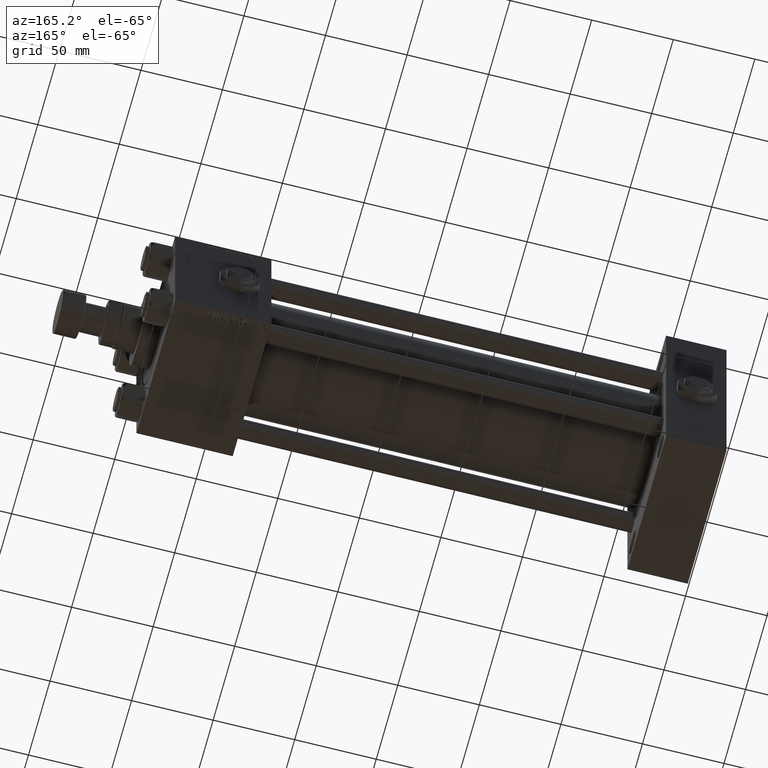
[diagram: clean part render]
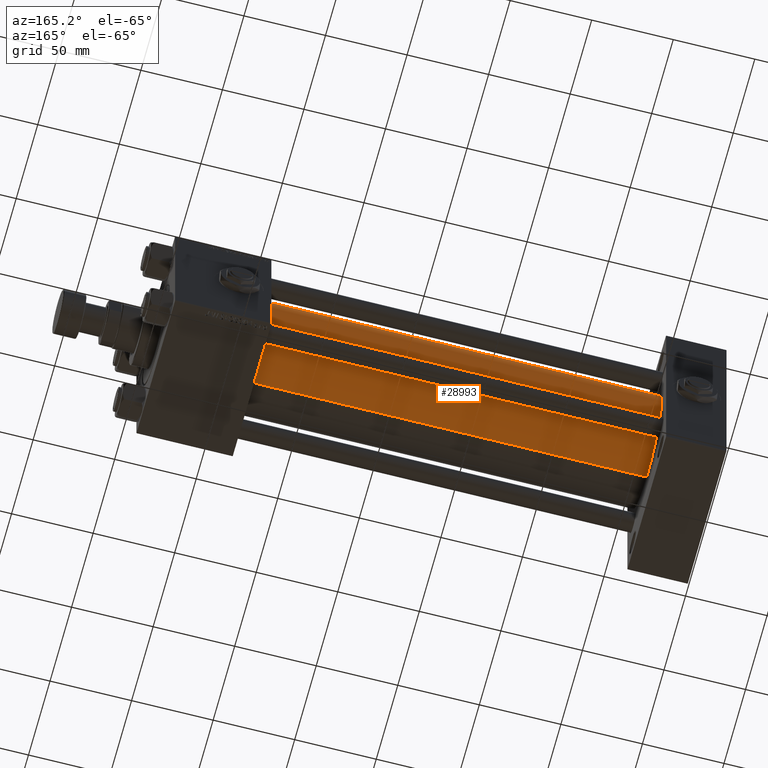
[diagram: same view with one face highlighted and labeled with its STEP entity id]
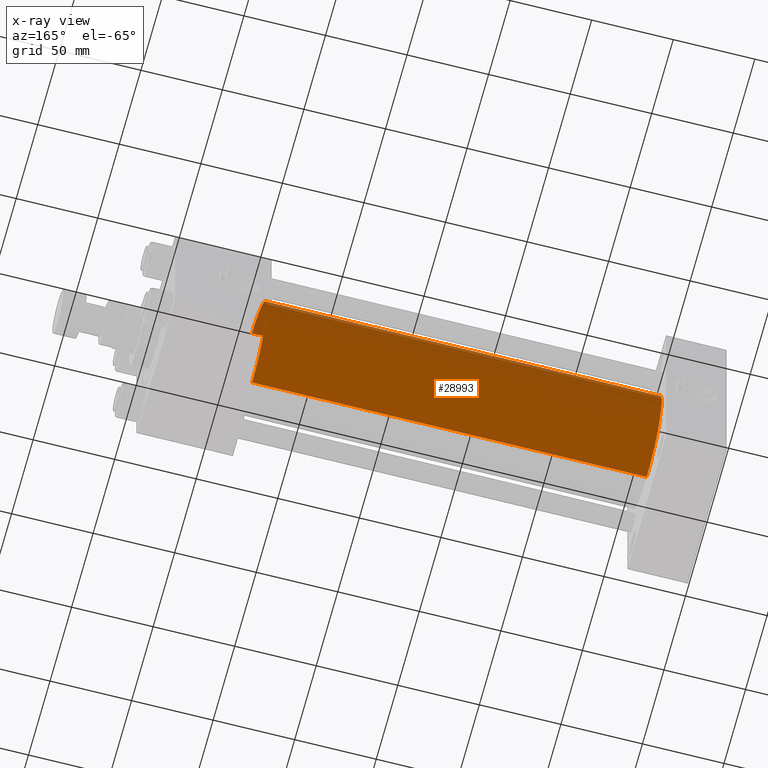
[diagram: x-ray of the same camera — body ghosted, the highlighted face saturated]
A machine part, auxiliary view. The second image highlights one B-rep face of the part: STEP entity #28993.
The next image is the same camera in x-ray: the body ghosted, the highlighted face saturated — about 1% of this face is hidden behind the body in this view.
In plain terms, the highlighted cylindrical surface (partial cylindrical patch) has radius 34.5 mm, axis along (-1, -0, -0).
Its self-contained STEP definition (entity closure, byte-faithful):
#2254 = ORIENTED_EDGE ( 'NONE', *, *, #19959, .F. ) ;
#4295 = VECTOR ( 'NONE', #14220, 1000.000000000000000 ) ;
#4762 = CARTESIAN_POINT ( 'NONE',  ( 278.9999999999999432, 1.622946243093158675E-15, -34.50000000000000000 ) ) ;
#5026 = CARTESIAN_POINT ( 'NONE',  ( 278.9999999999999432, 1.622946243093158675E-15, -34.50000000000000000 ) ) ;
#8583 = VERTEX_POINT ( 'NONE', #20701 ) ;
#10885 = EDGE_CURVE ( 'NONE', #31404, #26668, #26964, .T. ) ;
#11094 = ORIENTED_EDGE ( 'NONE', *, *, #21557, .T. ) ;
#11144 = VECTOR ( 'NONE', #33424, 1000.000000000000000 ) ;
#14220 = DIRECTION ( 'NONE',  ( -1.000000000000000000, -0.000000000000000000, -0.000000000000000000 ) ) ;
#16246 = CIRCLE ( 'NONE', #42596, 34.50000000000000000 ) ;
#17109 = FACE_OUTER_BOUND ( 'NONE', #38756, .T. ) ;
#18198 = LINE ( 'NONE', #26959, #4295 ) ;
#19959 = EDGE_CURVE ( 'NONE', #8583, #26668, #18198, .T. ) ;
#20701 = CARTESIAN_POINT ( 'NONE',  ( 278.9999999999999432, -2.602085213965210642E-15, 34.50000000000000000 ) ) ;
#21557 = EDGE_CURVE ( 'NONE', #49969, #31404, #41430, .T. ) ;
#22143 = DIRECTION ( 'NONE',  ( 0.000000000000000000, 0.000000000000000000, 1.000000000000000000 ) ) ;
#22259 = CARTESIAN_POINT ( 'NONE',  ( 37.00000000000000711, -2.602085213965210642E-15, 34.50000000000000000 ) ) ;
#23476 = DIRECTION ( 'NONE',  ( 0.000000000000000000, 0.000000000000000000, 1.000000000000000000 ) ) ;
#23562 = EDGE_CURVE ( 'NONE', #49969, #8583, #16246, .T. ) ;
#25348 = DIRECTION ( 'NONE',  ( -1.000000000000000000, -0.000000000000000000, -0.000000000000000000 ) ) ;
#25991 = CARTESIAN_POINT ( 'NONE',  ( 278.9999999999999432, -2.602085213965210642E-15, 0.000000000000000000 ) ) ;
#26390 = CARTESIAN_POINT ( 'NONE',  ( 278.9999999999999432, -2.602085213965210642E-15, 0.000000000000000000 ) ) ;
#26502 = DIRECTION ( 'NONE',  ( 0.000000000000000000, 0.000000000000000000, -1.000000000000000000 ) ) ;
#26668 = VERTEX_POINT ( 'NONE', #22259 ) ;
#26959 = CARTESIAN_POINT ( 'NONE',  ( 278.9999999999999432, -2.602085213965210642E-15, 34.50000000000000000 ) ) ;
#26964 = CIRCLE ( 'NONE', #33749, 34.50000000000000000 ) ;
#27790 = CARTESIAN_POINT ( 'NONE',  ( 37.00000000000000711, 1.622946243093158675E-15, -34.50000000000000000 ) ) ;
#28993 = ADVANCED_FACE ( 'NONE', ( #17109 ), #45565, .T. ) ;
#29090 = AXIS2_PLACEMENT_3D ( 'NONE', #26390, #25348, #22143 ) ;
#30652 = CARTESIAN_POINT ( 'NONE',  ( 37.00000000000000711, -2.602085213965210642E-15, 0.000000000000000000 ) ) ;
#31404 = VERTEX_POINT ( 'NONE', #27790 ) ;
#33424 = DIRECTION ( 'NONE',  ( -1.000000000000000000, -0.000000000000000000, -0.000000000000000000 ) ) ;
#33749 = AXIS2_PLACEMENT_3D ( 'NONE', #30652, #51922, #23476 ) ;
#35279 = ORIENTED_EDGE ( 'NONE', *, *, #10885, .T. ) ;
#38756 = EDGE_LOOP ( 'NONE', ( #50190, #11094, #35279, #2254 ) ) ;
#41430 = LINE ( 'NONE', #5026, #11144 ) ;
#42223 = DIRECTION ( 'NONE',  ( 1.000000000000000000, 0.000000000000000000, 0.000000000000000000 ) ) ;
#42596 = AXIS2_PLACEMENT_3D ( 'NONE', #25991, #42223, #26502 ) ;
#45565 = CYLINDRICAL_SURFACE ( 'NONE', #29090, 34.50000000000000000 ) ;
#49969 = VERTEX_POINT ( 'NONE', #4762 ) ;
#50190 = ORIENTED_EDGE ( 'NONE', *, *, #23562, .F. ) ;
#51922 = DIRECTION ( 'NONE',  ( 1.000000000000000000, 0.000000000000000000, 0.000000000000000000 ) ) ;